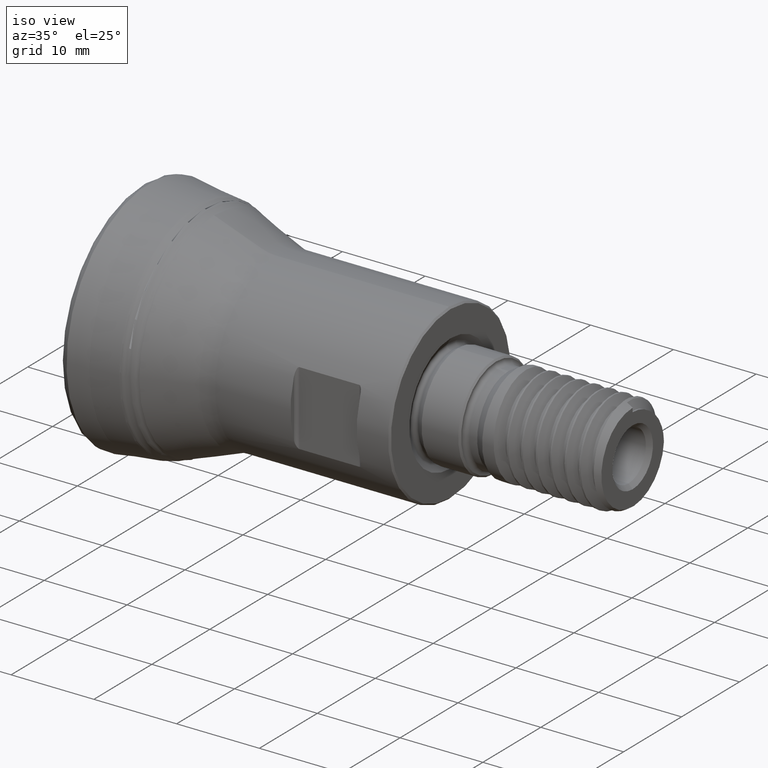
[diagram: clean part render]
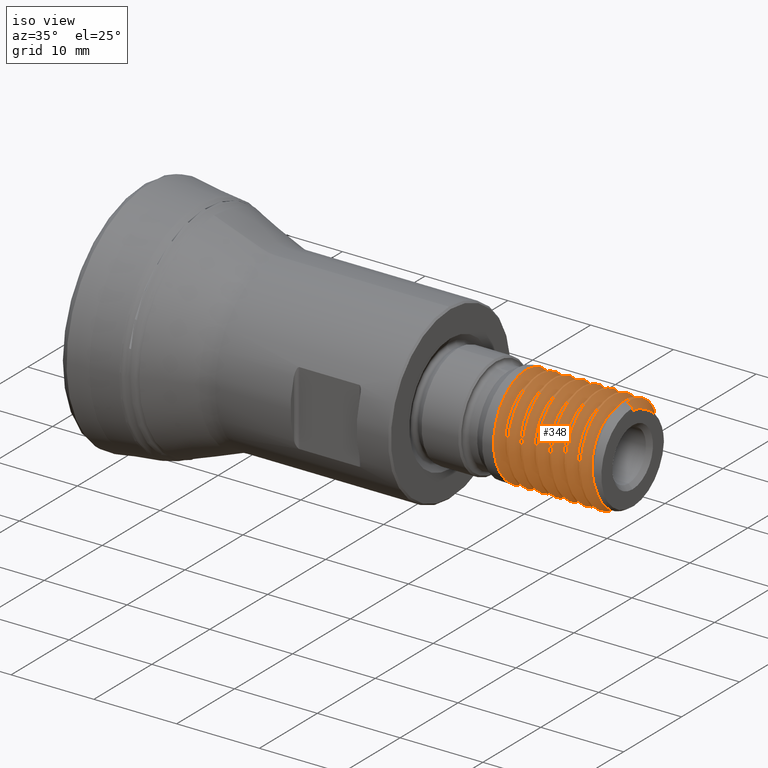
[diagram: same view with one face highlighted and labeled with its STEP entity id]
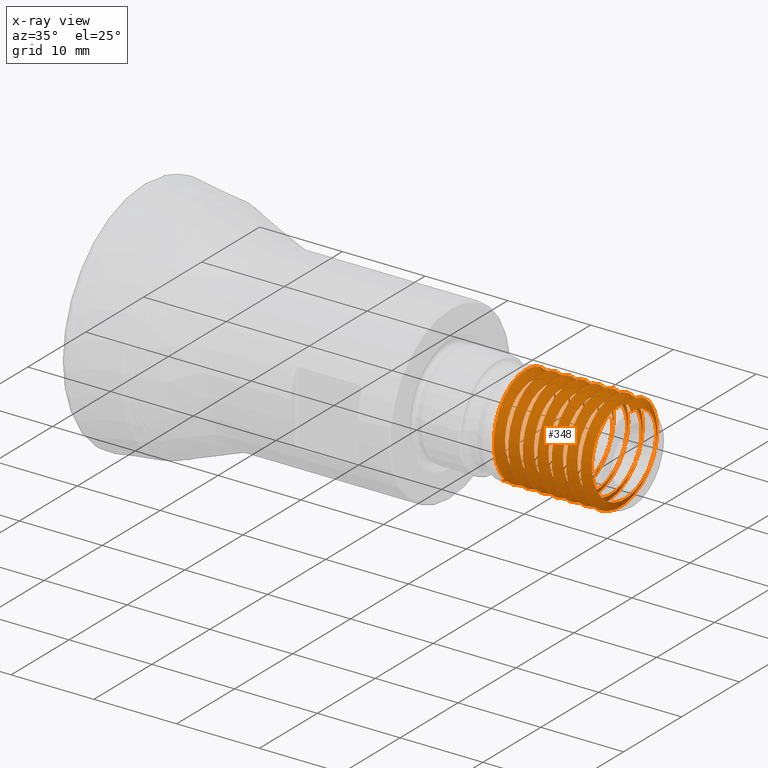
[diagram: x-ray of the same camera — body ghosted, the highlighted face saturated]
A machine part, iso view. The second image highlights one B-rep face of the part: STEP entity #348.
The next image is the same camera in x-ray: the body ghosted, the highlighted face saturated — about 1% of this face is hidden behind the body in this view.
In plain terms, the highlighted face is a freeform B-spline surface patch.
Its self-contained STEP definition (entity closure, byte-faithful):
#168=B_SPLINE_SURFACE_WITH_KNOTS('',1,3,((#2536,#2537,#2538,#2539,#2540,
#2541,#2542,#2543,#2544,#2545,#2546,#2547,#2548,#2549,#2550,#2551,#2552,
#2553,#2554,#2555,#2556,#2557,#2558,#2559,#2560,#2561,#2562,#2563,#2564,
#2565,#2566,#2567,#2568,#2569,#2570,#2571,#2572,#2573,#2574,#2575,#2576,
#2577,#2578,#2579,#2580,#2581,#2582,#2583,#2584,#2585,#2586,#2587,#2588,
#2589,#2590,#2591,#2592,#2593,#2594,#2595,#2596,#2597,#2598,#2599,#2600,
#2601,#2602,#2603,#2604,#2605,#2606,#2607,#2608,#2609,#2610,#2611,#2612,
#2613,#2614,#2615,#2616,#2617,#2618,#2619,#2620,#2621,#2622,#2623,#2624,
#2625,#2626,#2627,#2628,#2629,#2630,#2631,#2632,#2633,#2634,#2635,#2636,
#2637,#2638,#2639,#2640,#2641,#2642,#2643,#2644,#2645,#2646,#2647,#2648,
#2649,#2650,#2651,#2652,#2653,#2654,#2655,#2656,#2657,#2658,#2659,#2660),
(#2661,#2662,#2663,#2664,#2665,#2666,#2667,#2668,#2669,#2670,#2671,#2672,
#2673,#2674,#2675,#2676,#2677,#2678,#2679,#2680,#2681,#2682,#2683,#2684,
#2685,#2686,#2687,#2688,#2689,#2690,#2691,#2692,#2693,#2694,#2695,#2696,
#2697,#2698,#2699,#2700,#2701,#2702,#2703,#2704,#2705,#2706,#2707,#2708,
#2709,#2710,#2711,#2712,#2713,#2714,#2715,#2716,#2717,#2718,#2719,#2720,
#2721,#2722,#2723,#2724,#2725,#2726,#2727,#2728,#2729,#2730,#2731,#2732,
#2733,#2734,#2735,#2736,#2737,#2738,#2739,#2740,#2741,#2742,#2743,#2744,
#2745,#2746,#2747,#2748,#2749,#2750,#2751,#2752,#2753,#2754,#2755,#2756,
#2757,#2758,#2759,#2760,#2761,#2762,#2763,#2764,#2765,#2766,#2767,#2768,
#2769,#2770,#2771,#2772,#2773,#2774,#2775,#2776,#2777,#2778,#2779,#2780,
#2781,#2782,#2783,#2784,#2785)),.UNSPECIFIED.,.F.,.F.,.F.,(2,2),(4,1,1,
1,1,1,1,1,1,1,1,1,1,1,1,1,1,1,1,1,1,1,1,1,1,1,1,1,1,1,1,1,1,1,1,1,1,1,1,
1,1,1,1,1,1,1,1,1,1,1,1,1,1,1,1,1,1,1,1,1,1,1,1,1,1,1,1,1,1,1,1,1,1,1,1,
1,1,1,1,1,1,1,1,1,1,1,1,1,1,1,1,1,1,1,1,1,1,1,1,1,1,1,1,1,1,1,1,1,1,1,1,
1,1,1,1,1,1,1,1,1,1,1,4),(0.,1.),(0.,0.00825669002450642,0.0165133800490128,
0.0247700700735193,0.0330267600980257,0.0412834501225321,0.0495401401470385,
0.057796830171545,0.0660535201960514,0.0743102102205578,0.0825669002450642,
0.0908235902695707,0.0990802802940771,0.107336970318584,0.11559366034309,
0.123850350367596,0.132107040392103,0.140363730416609,0.148620420441116,
0.156877110465622,0.165133800490128,0.173390490514635,0.181647180539141,
0.189903870563648,0.198160560588154,0.206417250612661,0.214673940637167,
0.222930630661673,0.23118732068618,0.239444010710686,0.247700700735193,
0.255957390759699,0.264214080784206,0.272470770808712,0.280727460833218,
0.288984150857725,0.297240840882231,0.305497530906738,0.313754220931244,
0.322010910955751,0.330267600980257,0.338524291004763,0.34678098102927,
0.355037671053776,0.363294361078283,0.371551051102789,0.379807741127296,
0.388064431151802,0.396321121176308,0.404577811200815,0.412834501225321,
0.421091191249828,0.429347881274334,0.437604571298841,0.445861261323347,
0.454117951347853,0.46237464137236,0.470631331396866,0.478888021421373,
0.487144711445879,0.495401401470385,0.503658091494892,0.511914781519398,
0.520171471543905,0.528428161568411,0.536684851592918,0.544941541617424,
0.55319823164193,0.561454921666437,0.569711611690943,0.57796830171545,0.586224991739956,
0.594481681764463,0.602738371788969,0.610995061813475,0.619251751837982,
0.627508441862488,0.635765131886995,0.644021821911501,0.652278511936008,
0.660535201960514,0.66879189198502,0.677048582009527,0.685305272034033,
0.69356196205854,0.701818652083046,0.710075342107553,0.718332032132059,
0.726588722156565,0.734845412181072,0.743102102205578,0.751358792230085,
0.759615482254591,0.767872172279097,0.776128862303604,0.78438555232811,
0.792642242352617,0.800898932377123,0.80915562240163,0.817412312426136,
0.825669002450642,0.833925692475149,0.842182382499655,0.850439072524162,
0.858695762548668,0.866952452573175,0.875209142597681,0.883465832622187,
0.891722522646694,0.8999792126712,0.908235902695707,0.916492592720213,0.92474928274472,
0.933005972769226,0.941262662793732,0.949519352818239,0.957776042842745,
0.966032732867252,0.974289422891758,0.982546112916264,0.990802802940771,
0.999059492965277,1.),.UNSPECIFIED.);
#185=FACE_OUTER_BOUND('',#561,.T.);
#264=B_SPLINE_CURVE_WITH_KNOTS('',3,(#1675,#1676,#1677,#1678),
 .UNSPECIFIED.,.F.,.F.,(4,4),(0.,1.),.UNSPECIFIED.);
#266=B_SPLINE_CURVE_WITH_KNOTS('',3,(#1815,#1816,#1817,#1818,#1819,#1820,
#1821,#1822,#1823,#1824,#1825,#1826,#1827,#1828,#1829,#1830,#1831,#1832,
#1833,#1834,#1835,#1836,#1837,#1838,#1839,#1840,#1841,#1842,#1843,#1844,
#1845,#1846,#1847,#1848,#1849,#1850,#1851,#1852,#1853,#1854,#1855,#1856,
#1857,#1858,#1859,#1860,#1861,#1862,#1863,#1864,#1865,#1866,#1867,#1868,
#1869,#1870,#1871,#1872,#1873,#1874,#1875,#1876,#1877,#1878,#1879,#1880,
#1881,#1882,#1883,#1884,#1885,#1886,#1887,#1888,#1889,#1890,#1891,#1892,
#1893,#1894,#1895,#1896,#1897,#1898,#1899,#1900,#1901,#1902,#1903,#1904,
#1905,#1906,#1907,#1908,#1909,#1910,#1911,#1912,#1913,#1914,#1915,#1916,
#1917,#1918,#1919,#1920,#1921,#1922,#1923,#1924,#1925,#1926,#1927,#1928,
#1929,#1930,#1931,#1932,#1933,#1934,#1935,#1936,#1937,#1938,#1939,#1940,
#1941,#1942,#1943,#1944),.UNSPECIFIED.,.F.,.F.,(4,2,2,2,2,2,2,2,2,2,2,2,
2,2,2,2,2,2,2,2,2,2,2,2,2,2,2,2,2,2,2,2,2,2,2,2,2,2,2,2,2,2,2,2,2,2,2,2,
2,2,2,2,2,2,2,2,2,2,2,2,2,2,2,2,4),(0.,0.015625,0.03125,0.046875,0.0625,
0.078125,0.09375,0.109375,0.125,0.140625,0.15625,0.171875,0.1875,0.203125,
0.21875,0.234375,0.25,0.265625,0.28125,0.296875,0.3125,0.328125,0.34375,
0.359375,0.375,0.390625,0.40625,0.421875,0.4375,0.453125,0.46875,0.484375,
0.5,0.515625,0.53125,0.546875,0.5625,0.578125,0.59375,0.609375,0.625,0.640625,
0.65625,0.671875,0.6875,0.703125,0.71875,0.734375,0.75,0.765625,0.78125,
0.796875,0.8125,0.828125,0.84375,0.859375,0.875,0.890625,0.90625,0.921875,
0.9375,0.953125,0.96875,0.984375,1.),.UNSPECIFIED.);
#269=B_SPLINE_CURVE_WITH_KNOTS('',3,(#1985,#1986,#1987,#1988),
 .UNSPECIFIED.,.F.,.F.,(4,4),(0.,1.),.UNSPECIFIED.);
#272=B_SPLINE_CURVE_WITH_KNOTS('',1,(#2398,#2399),.UNSPECIFIED.,.F.,.F.,
(2,2),(0.,1.),.UNSPECIFIED.);
#273=B_SPLINE_CURVE_WITH_KNOTS('',1,(#2401,#2402),.UNSPECIFIED.,.F.,.F.,
(2,2),(0.,1.),.UNSPECIFIED.);
#274=B_SPLINE_CURVE_WITH_KNOTS('',3,(#2406,#2407,#2408,#2409,#2410,#2411,
#2412,#2413,#2414,#2415,#2416,#2417,#2418,#2419,#2420,#2421,#2422,#2423,
#2424,#2425,#2426,#2427,#2428,#2429,#2430,#2431,#2432,#2433,#2434,#2435,
#2436,#2437,#2438,#2439,#2440,#2441,#2442,#2443,#2444,#2445,#2446,#2447,
#2448,#2449,#2450,#2451,#2452,#2453,#2454,#2455,#2456,#2457,#2458,#2459,
#2460,#2461,#2462,#2463,#2464,#2465,#2466,#2467,#2468,#2469,#2470,#2471,
#2472,#2473,#2474,#2475,#2476,#2477,#2478,#2479,#2480,#2481,#2482,#2483,
#2484,#2485,#2486,#2487,#2488,#2489,#2490,#2491,#2492,#2493,#2494,#2495,
#2496,#2497,#2498,#2499,#2500,#2501,#2502,#2503,#2504,#2505,#2506,#2507,
#2508,#2509,#2510,#2511,#2512,#2513,#2514,#2515,#2516,#2517,#2518,#2519,
#2520,#2521,#2522,#2523,#2524,#2525,#2526,#2527,#2528,#2529,#2530,#2531,
#2532,#2533,#2534,#2535),.UNSPECIFIED.,.F.,.F.,(4,2,2,2,2,2,2,2,2,2,2,2,
2,2,2,2,2,2,2,2,2,2,2,2,2,2,2,2,2,2,2,2,2,2,2,2,2,2,2,2,2,2,2,2,2,2,2,2,
2,2,2,2,2,2,2,2,2,2,2,2,2,2,2,2,4),(0.,0.015625,0.03125,0.046875,0.0625,
0.078125,0.09375,0.109375,0.125,0.140625,0.15625,0.171875,0.1875,0.203125,
0.21875,0.234375,0.25,0.265625,0.28125,0.296875,0.3125,0.328125,0.34375,
0.359375,0.375,0.390625,0.40625,0.421875,0.4375,0.453125,0.46875,0.484375,
0.5,0.515625,0.53125,0.546875,0.5625,0.578125,0.59375,0.609375,0.625,0.640625,
0.65625,0.671875,0.6875,0.703125,0.71875,0.734375,0.75,0.765625,0.78125,
0.796875,0.8125,0.828125,0.84375,0.859375,0.875,0.890625,0.90625,0.921875,
0.9375,0.953125,0.96875,0.984375,1.),.UNSPECIFIED.);
#348=ADVANCED_FACE('',(#185),#168,.F.);
#561=EDGE_LOOP('',(#752,#753,#754,#755,#756,#757));
#752=ORIENTED_EDGE('',*,*,#957,.T.);
#753=ORIENTED_EDGE('',*,*,#961,.T.);
#754=ORIENTED_EDGE('',*,*,#971,.T.);
#755=ORIENTED_EDGE('',*,*,#983,.T.);
#756=ORIENTED_EDGE('',*,*,#986,.F.);
#757=ORIENTED_EDGE('',*,*,#984,.T.);
#870=VERTEX_POINT('',#1672);
#871=VERTEX_POINT('',#1674);
#874=VERTEX_POINT('',#1814);
#883=VERTEX_POINT('',#1984);
#885=VERTEX_POINT('',#2397);
#886=VERTEX_POINT('',#2403);
#957=EDGE_CURVE('',#870,#871,#264,.T.);
#961=EDGE_CURVE('',#871,#874,#266,.T.);
#971=EDGE_CURVE('',#874,#883,#269,.T.);
#983=EDGE_CURVE('',#883,#885,#272,.T.);
#984=EDGE_CURVE('',#886,#870,#273,.T.);
#986=EDGE_CURVE('',#886,#885,#274,.T.);
#1672=CARTESIAN_POINT('',(46.0726917918439,-2.52777389135362,-5.4053895303934));
#1674=CARTESIAN_POINT('',(46.1,-1.8050262281789,-5.70422381359515));
#1675=CARTESIAN_POINT('',(46.0726917918439,-2.52777389135362,-5.4053895303934));
#1676=CARTESIAN_POINT('',(46.0818619259266,-2.29391641488278,-5.52059521878028));
#1677=CARTESIAN_POINT('',(46.0909555987606,-2.05195277827451,-5.62061018455535));
#1678=CARTESIAN_POINT('',(46.1,-1.8050262281789,-5.70422381359515));
#1814=CARTESIAN_POINT('',(59.1,4.10274933737449,4.35473729112024));
#1815=CARTESIAN_POINT('',(46.1,-1.8050262281789,-5.70422381359515));
#1816=CARTESIAN_POINT('',(46.1679386039805,-0.405038560877823,-6.14723140607122));
#1817=CARTESIAN_POINT('',(46.2357081468748,1.12797512772242,-6.05369028695632));
#1818=CARTESIAN_POINT('',(46.3708643442137,3.78523203471506,-4.85710947195105));
#1819=CARTESIAN_POINT('',(46.438650470268,4.87751147024088,-3.75623839100835));
#1820=CARTESIAN_POINT('',(46.5741462057086,6.05608273826048,-1.10603203378554));
#1821=CARTESIAN_POINT('',(46.6415726270214,6.13912577272989,0.450414184721125));
#1822=CARTESIAN_POINT('',(46.7771781528413,5.25422736695623,3.20699750039232));
#1823=CARTESIAN_POINT('',(46.8446058393215,4.27987733857854,4.42478879418022));
#1824=CARTESIAN_POINT('',(46.9800828788024,1.78099003131587,5.89272266568981));
#1825=CARTESIAN_POINT('',(47.047689590528,0.249149187489495,6.15228421260404));
#1826=CARTESIAN_POINT('',(47.1831161501185,-2.60353753718715,5.57980901489837));
#1827=CARTESIAN_POINT('',(47.2507212714468,-3.90855540560576,4.76079903177151));
#1828=CARTESIAN_POINT('',(47.3865027207574,-5.66583184898972,2.41668414125228));
#1829=CARTESIAN_POINT('',(47.4544001529747,-6.08663309341397,0.938186310050877));
#1830=CARTESIAN_POINT('',(47.5894508340771,-5.83475268970115,-1.97052201617598));
#1831=CARTESIAN_POINT('',(47.6578196549428,-5.15766146405714,-3.3618909917874));
#1832=CARTESIAN_POINT('',(47.7924652831464,-3.04336394985025,-5.35179583758884));
#1833=CARTESIAN_POINT('',(47.860567448202,-1.60294068097315,-5.94333733484648));
#1834=CARTESIAN_POINT('',(47.9958612051978,1.29186272543707,-6.01861846283057));
#1835=CARTESIAN_POINT('',(48.0633302443416,2.76339668693085,-5.50066519815437));
#1836=CARTESIAN_POINT('',(48.1990297061425,4.97306592876277,-3.6279876157046));
#1837=CARTESIAN_POINT('',(48.2662358859172,5.72483953088021,-2.2656201161712));
#1838=CARTESIAN_POINT('',(48.402098725579,6.12635547114991,0.612038239197438));
#1839=CARTESIAN_POINT('',(48.4692216834934,5.78312940619498,2.11848031394952));
#1840=CARTESIAN_POINT('',(48.6053281757564,4.15498939779124,4.54627404295333));
#1841=CARTESIAN_POINT('',(48.6727196213368,2.89959624748595,5.43400463654082));
#1842=CARTESIAN_POINT('',(48.8083560446759,0.0652254232887786,6.15888061522048));
#1843=CARTESIAN_POINT('',(48.8765268880095,-1.46774473902044,5.97952759717726));
#1844=CARTESIAN_POINT('',(49.0110270160602,-4.04758732715947,4.63961870559905));
#1845=CARTESIAN_POINT('',(49.0797605147153,-5.08007641193247,3.47669433383432));
#1846=CARTESIAN_POINT('',(49.2141256847293,-6.10776195260967,0.767999851720032));
#1847=CARTESIAN_POINT('',(49.2823623417538,-6.10451700534834,-0.791891162697042));
#1848=CARTESIAN_POINT('',(49.4176325019475,-5.06716236273918,-3.49515165218682));
#1849=CARTESIAN_POINT('',(49.4850116992233,-4.02808536375231,-4.65580052535143));
#1850=CARTESIAN_POINT('',(49.6209471630336,-1.44759357194892,-5.98384684630134));
#1851=CARTESIAN_POINT('',(49.6878290542416,0.0914343546992128,-6.15757660737248));
#1852=CARTESIAN_POINT('',(49.8242041033579,2.91524661992751,-5.42452274968787));
#1853=CARTESIAN_POINT('',(49.8909600740079,4.1686698102574,-4.53520058345504));
#1854=CARTESIAN_POINT('',(50.0274460116296,5.79317134650642,-2.09404347355527));
#1855=CARTESIAN_POINT('',(50.0949570886146,6.12898923379823,-0.592185517127311));
#1856=CARTESIAN_POINT('',(50.2298891397713,5.71599809580882,2.28966339958953));
#1857=CARTESIAN_POINT('',(50.2985598915213,4.96029398933419,3.6459357040101));
#1858=CARTESIAN_POINT('',(50.4326587157739,2.74161761502767,5.51188683404971));
#1859=CARTESIAN_POINT('',(50.5016188822896,1.26869035952537,6.02346611911809));
#1860=CARTESIAN_POINT('',(50.6358852796641,-1.62514506700163,5.93722349484306));
#1861=CARTESIAN_POINT('',(50.7040735308378,-3.06484938297265,5.33898471572344));
#1862=CARTESIAN_POINT('',(50.839548521879,-5.16880487572098,3.34387734400641));
#1863=CARTESIAN_POINT('',(50.9066058910084,-5.84220713423084,1.94558741003168));
#1864=CARTESIAN_POINT('',(51.0430478858148,-6.08286750283748,-0.956774535747734));
#1865=CARTESIAN_POINT('',(51.1093330720598,-5.65856632392414,-2.43493485611158));
#1866=CARTESIAN_POINT('',(51.2465241827719,-3.89046116806737,-4.77625297649898));
#1867=CARTESIAN_POINT('',(51.3132126962691,-2.58626604586011,-5.58869752597888));
#1868=CARTESIAN_POINT('',(51.4489960561992,0.274996032789319,-6.15196629369843));
#1869=CARTESIAN_POINT('',(51.5169928595514,1.80170372728658,-5.88684121282588));
#1870=CARTESIAN_POINT('',(51.6515134211305,4.29797102444675,-4.40777504631982));
#1871=CARTESIAN_POINT('',(51.7204211292232,5.26632813688982,-3.1871427269828));
#1872=CARTESIAN_POINT('',(51.8543809717224,6.14082831945076,-0.426987539148655));
#1873=CARTESIAN_POINT('',(51.9233427189263,6.05126362785599,1.13020152378205));
#1874=CARTESIAN_POINT('',(52.0577332576819,4.86392737712075,3.77324229917288));
#1875=CARTESIAN_POINT('',(52.1256950951872,3.76443318668449,4.87230438151553));
#1876=CARTESIAN_POINT('',(52.2615536635271,1.10855126789481,6.0565189085477));
#1877=CARTESIAN_POINT('',(52.3281524897781,-0.431432647761708,6.14427035316356));
#1878=CARTESIAN_POINT('',(52.4652527818768,-3.21895486415675,5.25133524780516));
#1879=CARTESIAN_POINT('',(52.5315581908982,-4.41887296809312,4.28998792844203));
#1880=CARTESIAN_POINT('',(52.668138282049,-5.89872251655817,1.770736402453));
#1881=CARTESIAN_POINT('',(52.7353533712277,-6.15185351026425,0.24562364352308));
#1882=CARTESIAN_POINT('',(52.8705564853067,-5.57979939696755,-2.60220507946791));
#1883=CARTESIAN_POINT('',(52.9389502911989,-4.7480810170297,-3.91778890010271));
#1884=CARTESIAN_POINT('',(53.0731816133789,-2.43099185516347,-5.65540642307648));
#1885=CARTESIAN_POINT('',(53.1422247822624,-0.931293865079124,-6.08488368964449));
#1886=CARTESIAN_POINT('',(53.2761880074022,1.95419139307193,-5.83731563125374));
#1887=CARTESIAN_POINT('',(53.3450168377153,3.35645389362503,-5.16131233753401));
#1888=CARTESIAN_POINT('',(53.4797123779193,5.34901604571944,-3.0484348653444));
#1889=CARTESIAN_POINT('',(53.5472625446513,5.94177790223417,-1.62001842659381));
#1890=CARTESIAN_POINT('',(53.6837399547075,6.01993730614564,1.29982274639962));
#1891=CARTESIAN_POINT('',(53.7500560181948,5.51120778418255,2.75066943029042));
#1892=CARTESIAN_POINT('',(53.8872327692178,3.61842701959504,4.98463433553888));
#1893=CARTESIAN_POINT('',(53.9537186494597,2.26600656752155,5.72506681507896));
#1894=CARTESIAN_POINT('',(54.0897231609504,-0.614695246211986,6.12644477290487));
#1895=CARTESIAN_POINT('',(54.1573101951864,-2.12896367810147,5.7760717160287));
#1896=CARTESIAN_POINT('',(54.2922309516855,-4.53563527121692,4.16215130646101));
#1897=CARTESIAN_POINT('',(54.3607434823954,-5.43587097447228,2.88847217774716));
#1898=CARTESIAN_POINT('',(54.494969360126,-6.15507273563172,0.0839308752051802));
#1899=CARTESIAN_POINT('',(54.5638899904858,-5.9796178298832,-1.46445421489207));
#1900=CARTESIAN_POINT('',(54.6981167406371,-4.64497430552297,-4.04037983857998));
#1901=CARTESIAN_POINT('',(54.7665870281988,-3.4897034214181,-5.07377650285836));
#1902=CARTESIAN_POINT('',(54.9018144150428,-0.764761031732757,-6.11035011556276));
#1903=CARTESIAN_POINT('',(54.9688504699985,0.771549835223731,-6.11183754980671));
#1904=CARTESIAN_POINT('',(55.1059718901646,3.51204589035611,-5.06116400124456));
#1905=CARTESIAN_POINT('',(55.1723015407849,4.65394983145471,-4.03217863226074));
#1906=CARTESIAN_POINT('',(55.308744907128,5.98655309422532,-1.44183757968043));
#1907=CARTESIAN_POINT('',(55.3757654753441,6.15536077443762,0.100513645792017));
#1908=CARTESIAN_POINT('',(55.5113203896957,5.4264552148785,2.90725868429241));
#1909=CARTESIAN_POINT('',(55.5791935321205,4.5217437877005,4.17678662947207));
#1910=CARTESIAN_POINT('',(55.7139443352313,2.11229688922969,5.78186088396247));
#1911=CARTESIAN_POINT('',(55.782492186759,0.591713207673044,6.12754119709229));
#1912=CARTESIAN_POINT('',(55.9168322140213,-2.27804493501579,5.71903811110285));
#1913=CARTESIAN_POINT('',(55.9855281366184,-3.63747640614241,4.96819992176059));
#1914=CARTESIAN_POINT('',(56.1201645752933,-5.51302429710519,2.74240919035663));
#1915=CARTESIAN_POINT('',(56.1881357972903,-6.02334888381944,1.28982654336323));
#1916=CARTESIAN_POINT('',(56.3240858818258,-5.93752062176441,-1.64019302348703));
#1917=CARTESIAN_POINT('',(56.3911595301679,-5.34517552089754,-3.05849221936299));
#1918=CARTESIAN_POINT('',(56.5275077201025,-3.33702089427334,-5.17586394298473));
#1919=CARTESIAN_POINT('',(56.5943789801346,-1.93979798914137,-5.84292576048659));
#1920=CARTESIAN_POINT('',(56.7303666678704,0.952939390265625,-6.08231076152106));
#1921=CARTESIAN_POINT('',(56.7976529471956,2.44866283464641,-5.64769177587754));
#1922=CARTESIAN_POINT('',(56.9330478742171,4.75985498359881,-3.90335145845247));
#1923=CARTESIAN_POINT('',(57.0009282018463,5.58834828732556,-2.58158549030083));
#1924=CARTESIAN_POINT('',(57.1358018418479,6.15032530476504,0.260228495275072));
#1925=CARTESIAN_POINT('',(57.2041077056518,5.88987892860416,1.79374204788381));
#1926=CARTESIAN_POINT('',(57.3388480762806,4.41078523595246,4.29571390228276));
#1927=CARTESIAN_POINT('',(57.4070559947448,3.20467070238084,5.2597356356203));
#1928=CARTESIAN_POINT('',(57.5423715998155,0.417175201896098,6.14497340256531));
#1929=CARTESIAN_POINT('',(57.6102153856323,-1.1178473748374,6.05675736331518));
#1930=CARTESIAN_POINT('',(57.7458411551254,-3.78521420348317,4.85860534981518));
#1931=CARTESIAN_POINT('',(57.8132937202158,-4.87340935886658,3.76264520039397));
#1932=CARTESIAN_POINT('',(57.9490632206773,-6.05635670825505,1.10822430288741));
#1933=CARTESIAN_POINT('',(58.0163346361011,-6.13968418405499,-0.445255830785809));
#1934=CARTESIAN_POINT('',(58.1520123651708,-5.25630087075146,-3.20394690825569));
#1935=CARTESIAN_POINT('',(58.219463456578,-4.28202519198935,-4.4223006736523));
#1936=CARTESIAN_POINT('',(58.3548173451341,-1.78636479671664,-5.89078804626924));
#1937=CARTESIAN_POINT('',(58.4226215531602,-0.250911151076705,-6.15143168838507));
#1938=CARTESIAN_POINT('',(58.5577311976123,2.59575641475786,-5.58257260211151));
#1939=CARTESIAN_POINT('',(58.6257075633559,3.9071846356975,-4.76025069914134));
#1940=CARTESIAN_POINT('',(58.7609757339518,5.66020021229431,-2.42656383654948));
#1941=CARTESIAN_POINT('',(58.8288718660407,6.08618012256178,-0.949689122942832));
#1942=CARTESIAN_POINT('',(58.964434894904,5.83621492385087,1.97030283893681));
#1943=CARTESIAN_POINT('',(59.0319001569077,5.17152660280578,3.34780508731302));
#1944=CARTESIAN_POINT('',(59.1,4.10274933737449,4.35473729112023));
#1984=CARTESIAN_POINT('',(59.4157056144029,0.,5.8007272785398));
#1985=CARTESIAN_POINT('',(59.1,4.10274933737449,4.35473729112024));
#1986=CARTESIAN_POINT('',(59.2041412487137,2.9719077869908,5.33753496848951));
#1987=CARTESIAN_POINT('',(59.3078744429684,1.49719142620324,5.86298363439453));
#1988=CARTESIAN_POINT('',(59.4157056144029,0.,5.80072727853979));
#2397=CARTESIAN_POINT('',(59.930255923577,0.,4.9095));
#2398=CARTESIAN_POINT('',(59.252735382683,0.,6.083));
#2399=CARTESIAN_POINT('',(60.0451024422882,0.,4.71057999451975));
#2401=CARTESIAN_POINT('',(46.7982687019677,-1.99541653036034,-4.26699700431189));
#2402=CARTESIAN_POINT('',(46.0059016423624,-2.57677796965625,-5.51017980958319));
#2403=CARTESIAN_POINT('',(46.6833830095886,-2.07970841335367,-4.44724669491428));
#2406=CARTESIAN_POINT('',(46.6833830095886,-2.07970841335367,-4.44724669491428));
#2407=CARTESIAN_POINT('',(46.7533268694078,-0.967529428720145,-4.96734556735654));
#2408=CARTESIAN_POINT('',(46.821596062744,0.328841820840933,-5.04584294624775));
#2409=CARTESIAN_POINT('',(46.9596434968405,2.63690060699119,-4.31455944103007));
#2410=CARTESIAN_POINT('',(47.0284476665563,3.65450708801991,-3.49515312222435));
#2411=CARTESIAN_POINT('',(47.1664701494855,4.86107447465998,-1.39336727247038));
#2412=CARTESIAN_POINT('',(47.235156692419,5.05727827508215,-0.107979280700517));
#2413=CARTESIAN_POINT('',(47.3736038925498,4.5209441341546,2.26909391884329));
#2414=CARTESIAN_POINT('',(47.4420685820975,3.80107173686418,3.34001610465038));
#2415=CARTESIAN_POINT('',(47.5808728271651,1.78639805987066,4.73419854883611));
#2416=CARTESIAN_POINT('',(47.6498657482726,0.528257730112445,5.02995112147652));
#2417=CARTESIAN_POINT('',(47.7871964588923,-1.87869071250814,4.6957412322872));
#2418=CARTESIAN_POINT('',(47.857177104707,-3.01618905741621,4.05850315150578));
#2419=CARTESIAN_POINT('',(47.9938316995201,-4.55725360774264,2.19095500081045));
#2420=CARTESIAN_POINT('',(48.0640259397309,-4.9667197613319,0.95031349315415));
#2421=CARTESIAN_POINT('',(48.2008881355564,-4.8385344559162,-1.46968882481544));
#2422=CARTESIAN_POINT('',(48.2704155991447,-4.30515698050767,-2.65572781722392));
#2423=CARTESIAN_POINT('',(48.4084746543109,-2.56422977502125,-4.36027436371672));
#2424=CARTESIAN_POINT('',(48.4767695468324,-1.37835787956848,-4.86873780059777));
#2425=CARTESIAN_POINT('',(48.616267870515,1.07098225738833,-4.94544995116699));
#2426=CARTESIAN_POINT('',(48.6842035165209,2.28777695009895,-4.51063478185884));
#2427=CARTESIAN_POINT('',(48.8227929465985,4.12760230949742,-2.92278098449924));
#2428=CARTESIAN_POINT('',(48.8913587719204,4.73664931620915,-1.77002644132474));
#2429=CARTESIAN_POINT('',(49.0293583137244,5.0165311876468,0.635023772074937));
#2430=CARTESIAN_POINT('',(49.098299224437,4.68657909666231,1.89924217172637));
#2431=CARTESIAN_POINT('',(49.2361167588512,3.26490141150259,3.86154933016586));
#2432=CARTESIAN_POINT('',(49.3050636337791,2.17272651811239,4.56793589552046));
#2433=CARTESIAN_POINT('',(49.4432243589858,-0.214384260298594,5.05379246279755));
#2434=CARTESIAN_POINT('',(49.5119268745172,-1.48618089099262,4.83699131859188));
#2435=CARTESIAN_POINT('',(49.6505727498449,-3.58510025560644,3.57103273775745));
#2436=CARTESIAN_POINT('',(49.7197102789578,-4.37045738573603,2.54545077695148));
#2437=CARTESIAN_POINT('',(49.8569532700551,-5.05321644287947,0.212652297965643));
#2438=CARTESIAN_POINT('',(49.9269566171607,-4.93862336304363,-1.08582732956727));
#2439=CARTESIAN_POINT('',(50.0636667864742,-3.86753394220136,-3.2574841392639));
#2440=CARTESIAN_POINT('',(50.133684843938,-2.90393749524175,-4.13982544234696));
#2441=CARTESIAN_POINT('',(50.2708149059916,-0.644639475621762,-5.01552067245707));
#2442=CARTESIAN_POINT('',(50.3399483469736,0.656267979964945,-5.01553552975267));
#2443=CARTESIAN_POINT('',(50.4784480650645,2.92420967569983,-4.12738198914059));
#2444=CARTESIAN_POINT('',(50.5463611012591,3.87447353830141,-3.25488604551267));
#2445=CARTESIAN_POINT('',(50.6861145231974,4.94973861839463,-1.05162539805948));
#2446=CARTESIAN_POINT('',(50.7539353923518,5.05221961357625,0.235768907786711));
#2447=CARTESIAN_POINT('',(50.8925025842321,4.35867310043333,2.5656341916264));
#2448=CARTESIAN_POINT('',(50.9612029513589,3.55734419941762,3.59365406657399));
#2449=CARTESIAN_POINT('',(51.0989871530832,1.47862395878135,4.83556806299444));
#2450=CARTESIAN_POINT('',(51.1682209295803,0.190265293524021,5.0531774356663));
#2451=CARTESIAN_POINT('',(51.3057140668482,-2.18225316722876,4.5616416115656));
#2452=CARTESIAN_POINT('',(51.3750214855544,-3.27479369920533,3.85507335140277));
#2453=CARTESIAN_POINT('',(51.5128311848662,-4.69670381473269,1.87798764472136));
#2454=CARTESIAN_POINT('',(51.5818082063314,-5.020984224223,0.629545999787564));
#2455=CARTESIAN_POINT('',(51.720291767147,-4.72739211599569,-1.80509681938853));
#2456=CARTESIAN_POINT('',(51.7895426107995,-4.11451256289306,-2.94139030169173));
#2457=CARTESIAN_POINT('',(51.926759986885,-2.26663220578488,-4.5214343941707));
#2458=CARTESIAN_POINT('',(51.9966808595494,-1.03569448667775,-4.94939899105175));
#2459=CARTESIAN_POINT('',(52.1335786899067,1.38436716192873,-4.86340837307872));
#2460=CARTESIAN_POINT('',(52.2032445657411,2.58435997664283,-4.34645929014315));
#2461=CARTESIAN_POINT('',(52.3408339406883,4.30955265285547,-2.64544528992971));
#2462=CARTESIAN_POINT('',(52.409567630503,4.84332599517334,-1.45860654777003));
#2463=CARTESIAN_POINT('',(52.5483259165284,4.9636729146113,0.973288730785284));
#2464=CARTESIAN_POINT('',(52.6160297406712,4.55821684337824,2.19769748086049));
#2465=CARTESIAN_POINT('',(52.7559028360882,2.98929264780992,4.08305577654619));
#2466=CARTESIAN_POINT('',(52.8237154884396,1.85783012143304,4.70422856929402));
#2467=CARTESIAN_POINT('',(52.9621997506528,-0.552125545234185,5.02756964890252));
#2468=CARTESIAN_POINT('',(53.0310636890515,-1.8180402153236,4.71847510402258));
#2469=CARTESIAN_POINT('',(53.1686401073324,-3.80352367836367,3.33203918943667));
#2470=CARTESIAN_POINT('',(53.2381255380592,-4.53042716303754,2.24626595539007));
#2471=CARTESIAN_POINT('',(53.3753629646302,-5.05533009867214,-0.118821779957896));
#2472=CARTESIAN_POINT('',(53.4449275114346,-4.85898479230144,-1.40542997940104));
#2473=CARTESIAN_POINT('',(53.5825084257173,-3.63958693000861,-3.51260211491799));
#2474=CARTESIAN_POINT('',(53.6516025453059,-2.63450990354552,-4.32057589146484));
#2475=CARTESIAN_POINT('',(53.7900908951949,-0.292634997115093,-5.05196825249824));
#2476=CARTESIAN_POINT('',(53.8592560815559,0.994350610989899,-4.95913719035194));
#2477=CARTESIAN_POINT('',(53.9966479910872,3.19395283094698,-3.92179042326251));
#2478=CARTESIAN_POINT('',(54.0662563564114,4.08892057311909,-2.97491879611537));
#2479=CARTESIAN_POINT('',(54.2035657129053,5.00329659303856,-0.732418254036422));
#2480=CARTESIAN_POINT('',(54.2728105093112,5.02401297946959,0.574078717151506));
#2481=CARTESIAN_POINT('',(54.4107520073459,4.18050024892547,2.84494120503383));
#2482=CARTESIAN_POINT('',(54.4792716687202,3.31674604942982,3.81885210631839));
#2483=CARTESIAN_POINT('',(54.6180613680671,1.14892546688495,4.92589139525872));
#2484=CARTESIAN_POINT('',(54.6857838977708,-0.133703049491733,5.05873166833604));
#2485=CARTESIAN_POINT('',(54.8255825428727,-2.49786741751623,4.40105680060826));
#2486=CARTESIAN_POINT('',(54.8935735296565,-3.527888872804,3.62437900948091));
#2487=CARTESIAN_POINT('',(55.0318254885052,-4.81174505735337,1.55859956571773));
#2488=CARTESIAN_POINT('',(55.100987417169,-5.04900516060357,0.277641134092697));
#2489=CARTESIAN_POINT('',(55.2382583483837,-4.59901621012161,-2.10204367466055));
#2490=CARTESIAN_POINT('',(55.3080703169126,-3.90691108123795,-3.21033190209622));
#2491=CARTESIAN_POINT('',(55.4450124051205,-1.9654919189919,-4.65908002020722));
#2492=CARTESIAN_POINT('',(55.5148427582458,-0.711188693272488,-5.00782417616875));
#2493=CARTESIAN_POINT('',(55.6522191097427,1.71003213456948,-4.76023974560091));
#2494=CARTESIAN_POINT('',(55.7213664042743,2.8590734532656,-4.17554142675052));
#2495=CARTESIAN_POINT('',(55.859952378931,4.48760224366135,-2.33898980766558));
#2496=CARTESIAN_POINT('',(55.928893518447,4.93057164648628,-1.12784555219452));
#2497=CARTESIAN_POINT('',(56.0666228715777,4.88684166928083,1.30435840554654));
#2498=CARTESIAN_POINT('',(56.1357872924169,4.39048123365605,2.50864627752319));
#2499=CARTESIAN_POINT('',(56.2735799043273,2.72030502866569,4.26257811187467));
#2500=CARTESIAN_POINT('',(56.3424676999351,1.53722341121225,4.81735412671404));
#2501=CARTESIAN_POINT('',(56.4805830656859,-0.879539564121433,4.9795950390863));
#2502=CARTESIAN_POINT('',(56.549041055143,-2.12240741546944,4.59118185111919));
#2503=CARTESIAN_POINT('',(56.6877601667573,-4.02074301488668,3.06874398337918));
#2504=CARTESIAN_POINT('',(56.7555732116529,-4.66819831556166,1.95397648175285));
#2505=CARTESIAN_POINT('',(56.8952659449758,-5.03848288794711,-0.473064258341411));
#2506=CARTESIAN_POINT('',(56.9634342581841,-4.75279471971929,-1.73029240856672));
#2507=CARTESIAN_POINT('',(57.1014875282052,-3.3951124460146,-3.7491573647757));
#2508=CARTESIAN_POINT('',(57.170879847745,-2.32447770541169,-4.4907258765222));
#2509=CARTESIAN_POINT('',(57.3079364855113,0.0305857091895615,-5.05656800759324));
#2510=CARTESIAN_POINT('',(57.3779491983365,1.32523097587734,-4.87992482755977));
#2511=CARTESIAN_POINT('',(57.5147366983272,3.44266521283325,-3.70377640988314));
#2512=CARTESIAN_POINT('',(57.5846578977614,4.27542463773985,-2.70258663277077));
#2513=CARTESIAN_POINT('',(57.7220115811424,5.04265081995484,-0.393577246081249));
#2514=CARTESIAN_POINT('',(57.7910050037198,4.98109315502181,0.893999079035614));
#2515=CARTESIAN_POINT('',(57.9298862642795,3.97394434663939,3.13341502232541));
#2516=CARTESIAN_POINT('',(57.9983897780952,3.05151811241609,4.03380943463337));
#2517=CARTESIAN_POINT('',(58.1366494579228,0.814833647210101,4.99193624485679));
#2518=CARTESIAN_POINT('',(58.205393897508,-0.486737503436194,5.03318745046704));
#2519=CARTESIAN_POINT('',(58.3434364308682,-2.771632374471,4.22941405984026));
#2520=CARTESIAN_POINT('',(58.4122099877983,-3.76284986500018,3.37796375251193));
#2521=CARTESIAN_POINT('',(58.5502867761886,-4.90208678009631,1.24065443223381));
#2522=CARTESIAN_POINT('',(58.6188936495502,-5.05766445874743,-0.0525288161646141));
#2523=CARTESIAN_POINT('',(58.7573673558797,-4.44813613853175,-2.40765735662126));
#2524=CARTESIAN_POINT('',(58.8254783419533,-3.69697170159787,-3.45574229146861));
#2525=CARTESIAN_POINT('',(58.9648502423324,-1.63571624023298,-4.78896512086883));
#2526=CARTESIAN_POINT('',(59.0333495818441,-0.372062319978448,-5.04434488235336));
#2527=CARTESIAN_POINT('',(59.1711291565989,2.02677533522297,-4.63422349510725));
#2528=CARTESIAN_POINT('',(59.2408006038293,3.14189293160676,-3.96214922124155));
#2529=CARTESIAN_POINT('',(59.3776286553844,4.62416336731355,-2.04627241526169));
#2530=CARTESIAN_POINT('',(59.4478221072961,4.99406015302743,-0.793098307236685));
#2531=CARTESIAN_POINT('',(59.5845066569583,4.79003942617023,1.62023579541155));
#2532=CARTESIAN_POINT('',(59.6544245073218,4.21834187075232,2.79069461257317));
#2533=CARTESIAN_POINT('',(59.7918779538722,2.42780569435855,4.4371324151559));
#2534=CARTESIAN_POINT('',(59.8606016890875,1.22779711243442,4.9095));
#2535=CARTESIAN_POINT('',(59.930255923577,0.,4.9095));
#2536=CARTESIAN_POINT('',(60.0451024422882,0.,4.71057999451975));
#2537=CARTESIAN_POINT('',(60.0086441089549,0.616613479372097,4.71057999451975));
#2538=CARTESIAN_POINT('',(59.9357274422882,1.84957935937446,4.46527957408716));
#2539=CARTESIAN_POINT('',(59.8263524422882,3.41760985280451,3.41760985280451));
#2540=CARTESIAN_POINT('',(59.7169774422882,4.46527957408716,1.84957935937446));
#2541=CARTESIAN_POINT('',(59.6076024422882,4.83323020473605,-2.22044604925031E-16));
#2542=CARTESIAN_POINT('',(59.4982274422882,4.46527957408716,-1.84957935937446));
#2543=CARTESIAN_POINT('',(59.3888524422882,3.41760985280451,-3.41760985280451));
#2544=CARTESIAN_POINT('',(59.2794774422882,1.84957935937446,-4.46527957408716));
#2545=CARTESIAN_POINT('',(59.1701024422882,2.22044604925031E-16,-4.83323020473605));
#2546=CARTESIAN_POINT('',(59.0607274422882,-1.84957935937446,-4.46527957408716));
#2547=CARTESIAN_POINT('',(58.9513524422882,-3.41760985280451,-3.41760985280451));
#2548=CARTESIAN_POINT('',(58.8419774422882,-4.46527957408716,-1.84957935937446));
#2549=CARTESIAN_POINT('',(58.7326024422882,-4.83323020473605,-6.66133814775094E-16));
#2550=CARTESIAN_POINT('',(58.6232274422882,-4.46527957408716,1.84957935937446));
#2551=CARTESIAN_POINT('',(58.5138524422882,-3.41760985280451,3.41760985280451));
#2552=CARTESIAN_POINT('',(58.4044774422882,-1.84957935937446,4.46527957408716));
#2553=CARTESIAN_POINT('',(58.2951024422882,-1.55431223447522E-15,4.83323020473605));
#2554=CARTESIAN_POINT('',(58.1857274422882,1.84957935937446,4.46527957408716));
#2555=CARTESIAN_POINT('',(58.0763524422882,3.41760985280451,3.41760985280451));
#2556=CARTESIAN_POINT('',(57.9669774422882,4.46527957408716,1.84957935937446));
#2557=CARTESIAN_POINT('',(57.8576024422882,4.83323020473605,2.66453525910038E-15));
#2558=CARTESIAN_POINT('',(57.7482274422882,4.46527957408716,-1.84957935937446));
#2559=CARTESIAN_POINT('',(57.6388524422882,3.41760985280451,-3.4176098528045));
#2560=CARTESIAN_POINT('',(57.5294774422882,1.84957935937446,-4.46527957408716));
#2561=CARTESIAN_POINT('',(57.4201024422882,2.22044604925031E-15,-4.83323020473605));
#2562=CARTESIAN_POINT('',(57.3107274422882,-1.84957935937446,-4.46527957408716));
#2563=CARTESIAN_POINT('',(57.2013524422882,-3.41760985280451,-3.4176098528045));
#2564=CARTESIAN_POINT('',(57.0919774422882,-4.46527957408715,-1.84957935937446));
#2565=CARTESIAN_POINT('',(56.9826024422882,-4.83323020473605,-1.99840144432528E-15));
#2566=CARTESIAN_POINT('',(56.8732274422882,-4.46527957408716,1.84957935937446));
#2567=CARTESIAN_POINT('',(56.7638524422882,-3.41760985280451,3.4176098528045));
#2568=CARTESIAN_POINT('',(56.6544774422882,-1.84957935937446,4.46527957408716));
#2569=CARTESIAN_POINT('',(56.5451024422882,-2.44249065417534E-15,4.83323020473605));
#2570=CARTESIAN_POINT('',(56.4357274422882,1.84957935937446,4.46527957408716));
#2571=CARTESIAN_POINT('',(56.3263524422882,3.41760985280451,3.4176098528045));
#2572=CARTESIAN_POINT('',(56.2169774422882,4.46527957408715,1.84957935937447));
#2573=CARTESIAN_POINT('',(56.1076024422882,4.83323020473605,2.88657986402541E-15));
#2574=CARTESIAN_POINT('',(55.9982274422882,4.46527957408715,-1.84957935937446));
#2575=CARTESIAN_POINT('',(55.8888524422882,3.41760985280451,-3.4176098528045));
#2576=CARTESIAN_POINT('',(55.7794774422882,1.84957935937446,-4.46527957408716));
#2577=CARTESIAN_POINT('',(55.6701024422882,-1.33226762955019E-15,-4.83323020473605));
#2578=CARTESIAN_POINT('',(55.5607274422882,-1.84957935937444,-4.46527957408716));
#2579=CARTESIAN_POINT('',(55.4513524422882,-3.41760985280451,-3.4176098528045));
#2580=CARTESIAN_POINT('',(55.3419774422882,-4.46527957408715,-1.84957935937446));
#2581=CARTESIAN_POINT('',(55.2326024422882,-4.83323020473605,-1.82076576038526E-14));
#2582=CARTESIAN_POINT('',(55.1232274422882,-4.46527957408716,1.84957935937447));
#2583=CARTESIAN_POINT('',(55.0138524422882,-3.41760985280452,3.4176098528045));
#2584=CARTESIAN_POINT('',(54.9044774422882,-1.84957935937445,4.46527957408716));
#2585=CARTESIAN_POINT('',(54.7951024422882,-4.44089209850063E-15,4.83323020473605));
#2586=CARTESIAN_POINT('',(54.6857274422882,1.84957935937444,4.46527957408716));
#2587=CARTESIAN_POINT('',(54.5763524422882,3.41760985280451,3.4176098528045));
#2588=CARTESIAN_POINT('',(54.4669774422882,4.46527957408715,1.84957935937447));
#2589=CARTESIAN_POINT('',(54.3576024422882,4.83323020473605,-1.13242748511766E-14));
#2590=CARTESIAN_POINT('',(54.2482274422882,4.46527957408716,-1.84957935937446));
#2591=CARTESIAN_POINT('',(54.1388524422882,3.41760985280452,-3.4176098528045));
#2592=CARTESIAN_POINT('',(54.0294774422882,1.84957935937445,-4.46527957408716));
#2593=CARTESIAN_POINT('',(53.9201024422882,5.10702591327572E-15,-4.83323020473605));
#2594=CARTESIAN_POINT('',(53.8107274422882,-1.84957935937444,-4.46527957408717));
#2595=CARTESIAN_POINT('',(53.7013524422882,-3.41760985280451,-3.4176098528045));
#2596=CARTESIAN_POINT('',(53.5919774422882,-4.46527957408715,-1.84957935937446));
#2597=CARTESIAN_POINT('',(53.4826024422882,-4.83323020473605,-1.93178806284777E-14));
#2598=CARTESIAN_POINT('',(53.3732274422882,-4.46527957408715,1.84957935937446));
#2599=CARTESIAN_POINT('',(53.2638524422882,-3.41760985280452,3.4176098528045));
#2600=CARTESIAN_POINT('',(53.1544774422882,-1.84957935937445,4.46527957408716));
#2601=CARTESIAN_POINT('',(53.0451024422882,-5.77315972805081E-15,4.83323020473605));
#2602=CARTESIAN_POINT('',(52.9357274422882,1.84957935937444,4.46527957408717));
#2603=CARTESIAN_POINT('',(52.8263524422882,3.41760985280451,3.4176098528045));
#2604=CARTESIAN_POINT('',(52.7169774422882,4.46527957408715,1.84957935937447));
#2605=CARTESIAN_POINT('',(52.6076024422882,4.83323020473605,-9.99200722162641E-15));
#2606=CARTESIAN_POINT('',(52.4982274422882,4.46527957408716,-1.84957935937446));
#2607=CARTESIAN_POINT('',(52.3888524422882,3.41760985280452,-3.4176098528045));
#2608=CARTESIAN_POINT('',(52.2794774422882,1.84957935937445,-4.46527957408716));
#2609=CARTESIAN_POINT('',(52.1701024422882,6.43929354282591E-15,-4.83323020473605));
#2610=CARTESIAN_POINT('',(52.0607274422882,-1.84957935937444,-4.46527957408717));
#2611=CARTESIAN_POINT('',(51.9513524422882,-3.41760985280451,-3.4176098528045));
#2612=CARTESIAN_POINT('',(51.8419774422882,-4.46527957408715,-1.84957935937446));
#2613=CARTESIAN_POINT('',(51.7326024422882,-4.83323020473605,-2.04281036531029E-14));
#2614=CARTESIAN_POINT('',(51.6232274422882,-4.46527957408716,1.84957935937446));
#2615=CARTESIAN_POINT('',(51.5138524422882,-3.41760985280452,3.4176098528045));
#2616=CARTESIAN_POINT('',(51.4044774422882,-1.84957935937445,4.46527957408716));
#2617=CARTESIAN_POINT('',(51.2951024422882,-9.32587340685131E-15,4.83323020473605));
#2618=CARTESIAN_POINT('',(51.1857274422882,1.84957935937445,4.46527957408716));
#2619=CARTESIAN_POINT('',(51.0763524422882,3.41760985280449,3.41760985280453));
#2620=CARTESIAN_POINT('',(50.9669774422882,4.46527957408717,1.84957935937444));
#2621=CARTESIAN_POINT('',(50.8576024422882,4.83323020473605,6.66133814775094E-16));
#2622=CARTESIAN_POINT('',(50.7482274422882,4.46527957408716,-1.84957935937445));
#2623=CARTESIAN_POINT('',(50.6388524422882,3.41760985280451,-3.4176098528045));
#2624=CARTESIAN_POINT('',(50.5294774422882,1.84957935937447,-4.46527957408715));
#2625=CARTESIAN_POINT('',(50.4201024422882,4.61852778244065E-14,-4.83323020473605));
#2626=CARTESIAN_POINT('',(50.3107274422882,-1.84957935937448,-4.46527957408715));
#2627=CARTESIAN_POINT('',(50.2013524422882,-3.4176098528045,-3.41760985280451));
#2628=CARTESIAN_POINT('',(50.0919774422882,-4.46527957408715,-1.84957935937446));
#2629=CARTESIAN_POINT('',(49.9826024422882,-4.83323020473605,-1.24344978758018E-14));
#2630=CARTESIAN_POINT('',(49.8732274422882,-4.46527957408717,1.84957935937443));
#2631=CARTESIAN_POINT('',(49.7638524422882,-3.4176098528045,3.41760985280452));
#2632=CARTESIAN_POINT('',(49.6544774422882,-1.84957935937446,4.46527957408716));
#2633=CARTESIAN_POINT('',(49.5451024422882,-9.32587340685131E-15,4.83323020473605));
#2634=CARTESIAN_POINT('',(49.4357274422882,1.84957935937445,4.46527957408716));
#2635=CARTESIAN_POINT('',(49.3263524422882,3.41760985280449,3.41760985280453));
#2636=CARTESIAN_POINT('',(49.2169774422882,4.46527957408717,1.84957935937444));
#2637=CARTESIAN_POINT('',(49.1076024422882,4.83323020473605,1.77635683940025E-15));
#2638=CARTESIAN_POINT('',(48.9982274422882,4.46527957408716,-1.84957935937445));
#2639=CARTESIAN_POINT('',(48.8888524422882,3.41760985280451,-3.4176098528045));
#2640=CARTESIAN_POINT('',(48.7794774422882,1.84957935937449,-4.46527957408715));
#2641=CARTESIAN_POINT('',(48.6701024422882,-2.79776202205539E-14,-4.83323020473605));
#2642=CARTESIAN_POINT('',(48.5607274422882,-1.84957935937446,-4.46527957408715));
#2643=CARTESIAN_POINT('',(48.4513524422882,-3.4176098528045,-3.41760985280451));
#2644=CARTESIAN_POINT('',(48.3419774422882,-4.46527957408715,-1.84957935937447));
#2645=CARTESIAN_POINT('',(48.2326024422882,-4.83323020473605,-1.26565424807268E-14));
#2646=CARTESIAN_POINT('',(48.1232274422882,-4.46527957408718,1.84957935937442));
#2647=CARTESIAN_POINT('',(48.0138524422882,-3.4176098528045,3.41760985280452));
#2648=CARTESIAN_POINT('',(47.9044774422882,-1.84957935937446,4.46527957408716));
#2649=CARTESIAN_POINT('',(47.7951024422882,-1.06581410364015E-14,4.83323020473605));
#2650=CARTESIAN_POINT('',(47.6857274422882,1.84957935937445,4.46527957408716));
#2651=CARTESIAN_POINT('',(47.5763524422882,3.41760985280448,3.41760985280453));
#2652=CARTESIAN_POINT('',(47.4669774422882,4.46527957408717,1.84957935937444));
#2653=CARTESIAN_POINT('',(47.3576024422882,4.83323020473605,3.10862446895044E-15));
#2654=CARTESIAN_POINT('',(47.2482274422882,4.46527957408716,-1.84957935937445));
#2655=CARTESIAN_POINT('',(47.1388524422882,3.41760985280452,-3.4176098528045));
#2656=CARTESIAN_POINT('',(47.0294774422882,1.84957935937448,-4.46527957408715));
#2657=CARTESIAN_POINT('',(46.9201024422882,4.90718576884319E-14,-4.83323020473606));
#2658=CARTESIAN_POINT('',(46.8430328621814,-1.30328049921189,-4.57395888492655));
#2659=CARTESIAN_POINT('',(46.8024216154079,-1.93181061013605,-4.29677276140833));
#2660=CARTESIAN_POINT('',(46.7982687019677,-1.99541653036034,-4.26699700431189));
#2661=CARTESIAN_POINT('',(59.252735382683,0.,6.083));
#2662=CARTESIAN_POINT('',(59.2162770493497,0.796262837991113,6.083));
#2663=CARTESIAN_POINT('',(59.143360382683,2.38845137035442,5.76623169137825));
#2664=CARTESIAN_POINT('',(59.033985382683,4.41332505950348,4.41332505950348));
#2665=CARTESIAN_POINT('',(58.924610382683,5.76623169137825,2.38845137035442));
#2666=CARTESIAN_POINT('',(58.815235382683,6.24138415431087,0.));
#2667=CARTESIAN_POINT('',(58.705860382683,5.76623169137825,-2.38845137035442));
#2668=CARTESIAN_POINT('',(58.596485382683,4.41332505950348,-4.41332505950348));
#2669=CARTESIAN_POINT('',(58.487110382683,2.38845137035442,-5.76623169137825));
#2670=CARTESIAN_POINT('',(58.377735382683,2.22044604925031E-16,-6.24138415431087));
#2671=CARTESIAN_POINT('',(58.268360382683,-2.38845137035442,-5.76623169137825));
#2672=CARTESIAN_POINT('',(58.158985382683,-4.41332505950348,-4.41332505950348));
#2673=CARTESIAN_POINT('',(58.049610382683,-5.76623169137825,-2.38845137035443));
#2674=CARTESIAN_POINT('',(57.940235382683,-6.24138415431088,-8.88178419700125E-16));
#2675=CARTESIAN_POINT('',(57.830860382683,-5.76623169137825,2.38845137035443));
#2676=CARTESIAN_POINT('',(57.721485382683,-4.41332505950348,4.41332505950348));
#2677=CARTESIAN_POINT('',(57.612110382683,-2.38845137035443,5.76623169137825));
#2678=CARTESIAN_POINT('',(57.502735382683,-1.55431223447522E-15,6.24138415431088));
#2679=CARTESIAN_POINT('',(57.393360382683,2.38845137035442,5.76623169137825));
#2680=CARTESIAN_POINT('',(57.283985382683,4.41332505950348,4.41332505950349));
#2681=CARTESIAN_POINT('',(57.174610382683,5.76623169137825,2.38845137035443));
#2682=CARTESIAN_POINT('',(57.065235382683,6.24138415431088,2.66453525910038E-15));
#2683=CARTESIAN_POINT('',(56.955860382683,5.76623169137825,-2.38845137035443));
#2684=CARTESIAN_POINT('',(56.846485382683,4.41332505950349,-4.41332505950348));
#2685=CARTESIAN_POINT('',(56.737110382683,2.38845137035443,-5.76623169137825));
#2686=CARTESIAN_POINT('',(56.627735382683,2.22044604925031E-15,-6.24138415431087));
#2687=CARTESIAN_POINT('',(56.518360382683,-2.38845137035442,-5.76623169137825));
#2688=CARTESIAN_POINT('',(56.408985382683,-4.41332505950349,-4.41332505950348));
#2689=CARTESIAN_POINT('',(56.299610382683,-5.76623169137824,-2.38845137035443));
#2690=CARTESIAN_POINT('',(56.190235382683,-6.24138415431088,-2.66453525910038E-15));
#2691=CARTESIAN_POINT('',(56.080860382683,-5.76623169137825,2.38845137035443));
#2692=CARTESIAN_POINT('',(55.971485382683,-4.41332505950349,4.41332505950347));
#2693=CARTESIAN_POINT('',(55.862110382683,-2.38845137035443,5.76623169137825));
#2694=CARTESIAN_POINT('',(55.752735382683,-2.44249065417534E-15,6.24138415431088));
#2695=CARTESIAN_POINT('',(55.643360382683,2.38845137035442,5.76623169137825));
#2696=CARTESIAN_POINT('',(55.533985382683,4.41332505950349,4.41332505950348));
#2697=CARTESIAN_POINT('',(55.424610382683,5.76623169137824,2.38845137035443));
#2698=CARTESIAN_POINT('',(55.315235382683,6.24138415431088,3.33066907387547E-15));
#2699=CARTESIAN_POINT('',(55.205860382683,5.76623169137825,-2.38845137035443));
#2700=CARTESIAN_POINT('',(55.096485382683,4.41332505950349,-4.41332505950347));
#2701=CARTESIAN_POINT('',(54.987110382683,2.38845137035443,-5.76623169137825));
#2702=CARTESIAN_POINT('',(54.877735382683,-1.33226762955019E-15,-6.24138415431087));
#2703=CARTESIAN_POINT('',(54.768360382683,-2.3884513703544,-5.76623169137826));
#2704=CARTESIAN_POINT('',(54.658985382683,-4.41332505950349,-4.41332505950348));
#2705=CARTESIAN_POINT('',(54.549610382683,-5.76623169137824,-2.38845137035443));
#2706=CARTESIAN_POINT('',(54.440235382683,-6.24138415431088,-2.30926389122033E-14));
#2707=CARTESIAN_POINT('',(54.330860382683,-5.76623169137825,2.38845137035443));
#2708=CARTESIAN_POINT('',(54.221485382683,-4.4133250595035,4.41332505950347));
#2709=CARTESIAN_POINT('',(54.112110382683,-2.38845137035441,5.76623169137825));
#2710=CARTESIAN_POINT('',(54.002735382683,-4.44089209850063E-15,6.24138415431087));
#2711=CARTESIAN_POINT('',(53.893360382683,2.3884513703544,5.76623169137826));
#2712=CARTESIAN_POINT('',(53.783985382683,4.41332505950349,4.41332505950348));
#2713=CARTESIAN_POINT('',(53.674610382683,5.76623169137824,2.38845137035444));
#2714=CARTESIAN_POINT('',(53.565235382683,6.24138415431088,-1.4432899320127E-14));
#2715=CARTESIAN_POINT('',(53.455860382683,5.76623169137825,-2.38845137035442));
#2716=CARTESIAN_POINT('',(53.346485382683,4.4133250595035,-4.41332505950347));
#2717=CARTESIAN_POINT('',(53.237110382683,2.38845137035441,-5.76623169137825));
#2718=CARTESIAN_POINT('',(53.127735382683,5.10702591327572E-15,-6.24138415431087));
#2719=CARTESIAN_POINT('',(53.018360382683,-2.3884513703544,-5.76623169137826));
#2720=CARTESIAN_POINT('',(52.908985382683,-4.41332505950349,-4.41332505950348));
#2721=CARTESIAN_POINT('',(52.799610382683,-5.76623169137824,-2.38845137035443));
#2722=CARTESIAN_POINT('',(52.690235382683,-6.24138415431088,-2.46469511466785E-14));
#2723=CARTESIAN_POINT('',(52.580860382683,-5.76623169137825,2.38845137035443));
#2724=CARTESIAN_POINT('',(52.471485382683,-4.4133250595035,4.41332505950347));
#2725=CARTESIAN_POINT('',(52.362110382683,-2.38845137035441,5.76623169137826));
#2726=CARTESIAN_POINT('',(52.252735382683,-5.77315972805081E-15,6.24138415431087));
#2727=CARTESIAN_POINT('',(52.143360382683,2.3884513703544,5.76623169137826));
#2728=CARTESIAN_POINT('',(52.033985382683,4.41332505950349,4.41332505950348));
#2729=CARTESIAN_POINT('',(51.924610382683,5.76623169137824,2.38845137035444));
#2730=CARTESIAN_POINT('',(51.815235382683,6.24138415431088,-1.24344978758018E-14));
#2731=CARTESIAN_POINT('',(51.705860382683,5.76623169137825,-2.38845137035442));
#2732=CARTESIAN_POINT('',(51.596485382683,4.4133250595035,-4.41332505950347));
#2733=CARTESIAN_POINT('',(51.487110382683,2.38845137035441,-5.76623169137826));
#2734=CARTESIAN_POINT('',(51.377735382683,6.43929354282591E-15,-6.24138415431087));
#2735=CARTESIAN_POINT('',(51.268360382683,-2.3884513703544,-5.76623169137826));
#2736=CARTESIAN_POINT('',(51.158985382683,-4.41332505950349,-4.41332505950348));
#2737=CARTESIAN_POINT('',(51.049610382683,-5.76623169137824,-2.38845137035443));
#2738=CARTESIAN_POINT('',(50.940235382683,-6.24138415431088,-2.62012633811537E-14));
#2739=CARTESIAN_POINT('',(50.830860382683,-5.76623169137825,2.38845137035443));
#2740=CARTESIAN_POINT('',(50.721485382683,-4.4133250595035,4.41332505950347));
#2741=CARTESIAN_POINT('',(50.612110382683,-2.38845137035441,5.76623169137826));
#2742=CARTESIAN_POINT('',(50.502735382683,-9.32587340685131E-15,6.24138415431087));
#2743=CARTESIAN_POINT('',(50.393360382683,2.38845137035441,5.76623169137825));
#2744=CARTESIAN_POINT('',(50.283985382683,4.41332505950346,4.41332505950352));
#2745=CARTESIAN_POINT('',(50.174610382683,5.76623169137827,2.38845137035439));
#2746=CARTESIAN_POINT('',(50.065235382683,6.24138415431087,1.33226762955019E-15));
#2747=CARTESIAN_POINT('',(49.955860382683,5.76623169137825,-2.38845137035442));
#2748=CARTESIAN_POINT('',(49.846485382683,4.41332505950349,-4.41332505950347));
#2749=CARTESIAN_POINT('',(49.737110382683,2.38845137035444,-5.76623169137824));
#2750=CARTESIAN_POINT('',(49.627735382683,4.61852778244065E-14,-6.24138415431088));
#2751=CARTESIAN_POINT('',(49.518360382683,-2.38845137035445,-5.76623169137824));
#2752=CARTESIAN_POINT('',(49.408985382683,-4.41332505950348,-4.41332505950349));
#2753=CARTESIAN_POINT('',(49.299610382683,-5.76623169137824,-2.38845137035443));
#2754=CARTESIAN_POINT('',(49.190235382683,-6.24138415431087,-1.57651669496772E-14));
#2755=CARTESIAN_POINT('',(49.080860382683,-5.76623169137827,2.38845137035438));
#2756=CARTESIAN_POINT('',(48.971485382683,-4.41332505950347,4.4133250595035));
#2757=CARTESIAN_POINT('',(48.862110382683,-2.38845137035442,5.76623169137825));
#2758=CARTESIAN_POINT('',(48.752735382683,-9.32587340685131E-15,6.24138415431087));
#2759=CARTESIAN_POINT('',(48.643360382683,2.3884513703544,5.76623169137825));
#2760=CARTESIAN_POINT('',(48.533985382683,4.41332505950346,4.41332505950352));
#2761=CARTESIAN_POINT('',(48.424610382683,5.76623169137827,2.3884513703544));
#2762=CARTESIAN_POINT('',(48.315235382683,6.24138415431087,2.44249065417534E-15));
#2763=CARTESIAN_POINT('',(48.205860382683,5.76623169137825,-2.38845137035441));
#2764=CARTESIAN_POINT('',(48.096485382683,4.41332505950349,-4.41332505950347));
#2765=CARTESIAN_POINT('',(47.987110382683,2.38845137035446,-5.76623169137824));
#2766=CARTESIAN_POINT('',(47.877735382683,-2.79776202205539E-14,-6.24138415431088));
#2767=CARTESIAN_POINT('',(47.768360382683,-2.38845137035442,-5.76623169137824));
#2768=CARTESIAN_POINT('',(47.658985382683,-4.41332505950348,-4.41332505950349));
#2769=CARTESIAN_POINT('',(47.549610382683,-5.76623169137824,-2.38845137035443));
#2770=CARTESIAN_POINT('',(47.440235382683,-6.24138415431087,-1.66533453693773E-14));
#2771=CARTESIAN_POINT('',(47.330860382683,-5.76623169137827,2.38845137035438));
#2772=CARTESIAN_POINT('',(47.221485382683,-4.41332505950347,4.4133250595035));
#2773=CARTESIAN_POINT('',(47.112110382683,-2.38845137035442,5.76623169137825));
#2774=CARTESIAN_POINT('',(47.002735382683,-1.06581410364015E-14,6.24138415431087));
#2775=CARTESIAN_POINT('',(46.893360382683,2.3884513703544,5.76623169137825));
#2776=CARTESIAN_POINT('',(46.783985382683,4.41332505950346,4.41332505950352));
#2777=CARTESIAN_POINT('',(46.674610382683,5.76623169137826,2.3884513703544));
#2778=CARTESIAN_POINT('',(46.565235382683,6.24138415431087,4.21884749357559E-15));
#2779=CARTESIAN_POINT('',(46.455860382683,5.76623169137825,-2.38845137035441));
#2780=CARTESIAN_POINT('',(46.346485382683,4.4133250595035,-4.41332505950347));
#2781=CARTESIAN_POINT('',(46.237110382683,2.38845137035444,-5.76623169137824));
#2782=CARTESIAN_POINT('',(46.127735382683,4.90718576884319E-14,-6.24138415431088));
#2783=CARTESIAN_POINT('',(46.0506658025761,-1.68298920428676,-5.90657454695127));
#2784=CARTESIAN_POINT('',(46.0100545558026,-2.49464056552035,-5.54863068625407));
#2785=CARTESIAN_POINT('',(46.0059016423624,-2.57677796965625,-5.51017980958319));